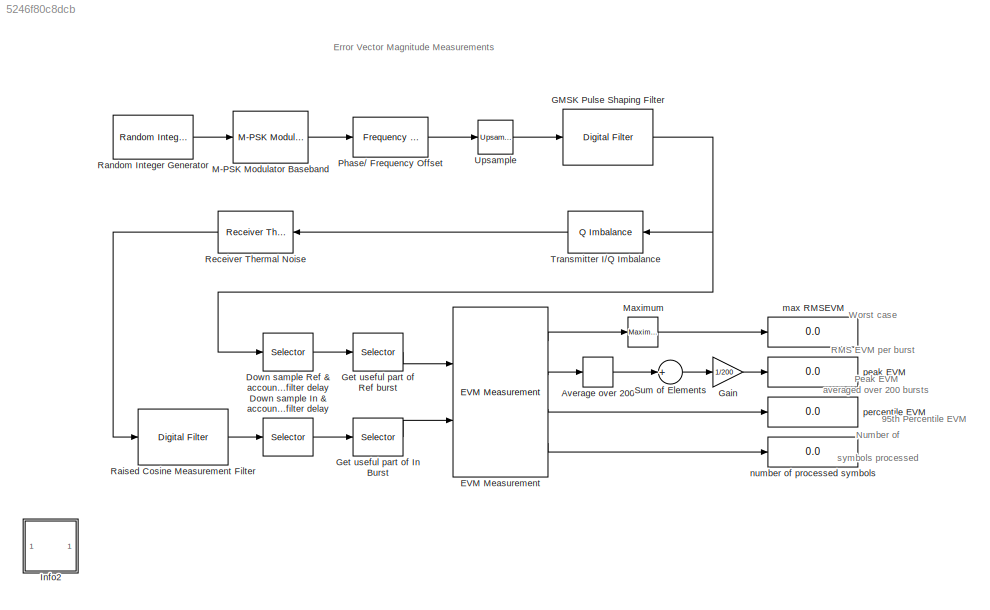
MODEL slx_5246f80c8dcb
KIND model
CONFIG PreLoadFcn =  paramEVM = doc_evm_init;
BLOCK [Buffer] Average over 200
  N = 200
  TreatMby1Signals = One channel
BLOCK [Selector] Down sample In & account for filter delay
  IndexOptions = Index vector (dialog),Select all
  Indices = [paramEVM.rcvSigDelay+1:paramEVM.Nsamp:paramEVM.burstLen2*paramEVM.Nsamp],1
  InputPortWidth = 3
  NumberOfDimensions = 2
  OutputSizes = 1,1
  Ports = [1, 1]
BLOCK [Selector] Down sample Ref & account for filter delay
  IndexOptions = Index vector (dialog),Select all
  Indices = [paramEVM.refSigDelay+1:paramEVM.Nsamp:paramEVM.burstLen2*paramEVM.Nsamp],1
  InputPortWidth = 3
  NumberOfDimensions = 2
  OutputSizes = 1,1
  Ports = [1, 1]
BLOCK [Reference] EVM Measurement  REF=commutil2/EVM Measurement
  Ports = [2, 4]
  SourceBlock = commutil2/EVM Measurement
  SourceType = EVM Measurement
  averagePower = 1
  maxOrMinOut = on
  nSym = on
  normMethod = Average reference signal power
  peakPower = 1
  percentileOut = on
  percentileVal = 95
BLOCK [Reference] GMSK Pulse Shaping Filter  REF=dsparch4/Digital Filter
  AllPoleFiltStruct = Direct form
  BiQuadCoeffs = [1 0.3 0.4 1 0.1 0.2]
  CoeffSource = Specify via dialog
  DenCoeffs = [1 0.1]
  FIRFiltStruct = Direct form
  FiltPerSampPopup = One filter per frame
  FilterSource = Specify via dialog
  IC = 0
  ICden = 0
  ICnum = 0
  IIRFiltStruct = Direct form II transposed
  InputProcessing = Columns as channels (frame based)
  LatticeCoeffs = [0.2 0.4]
  LockScale = off
  NumCoeffs = paramEVM.c0
  Ports = [1, 1]
  ScaleValues = 1
  SourceBlock = dsparch4/Digital Filter
  SourceType = Digital Filter
  TypePopup = FIR (all zeros)
  UserDataPersistent = on
  accumFracLength = 30
  accumMode = Same as product output
  accumWordLength = 32
  additionalParams = off
  allowOverrides = on
  denIgnore = on
  dfiltObjectName = dfilt.dffir([1 2 1])
  firstCoeffFracLength = 15
  firstCoeffMode = Same word length as input
  firstCoeffWordLength = 16
  memoryFracLength = 15
  memoryMode = Same as input
  memoryWordLength = 16
  multiplicandFracLength = 30
  multiplicandMode = Same as output
  multiplicandWordLength = 32
  outputFracLength = 15
  outputMode = Same as input
  outputWordLength = 16
  overflowMode = off
  prodOutputFracLength = 30
  prodOutputMode = Same as input
  prodOutputWordLength = 32
  roundingMode = Floor
  scaleValueFracLength = 14
  secondCoeffFracLength = 15
  secondCoeffMode = Same as numerator
  secondCoeffWordLength = 16
  showAcc = off
  showCoeff = off
  showMem = off
  showMpy = off
  showOut = off
  stageIOMode = Same as input
  stageIOWordLength = 16
  stageInFracLength = 15
  stageOutFracLength = 15
  tapSumFracLength = 30
  tapSumMode = Same as input
  tapSumWordLength = 32
  thirdCoeffFracLength = 15
  thirdCoeffMode = Same as input
  thirdCoeffWordLength = 16
BLOCK [Gain] Gain
  Gain = 1/200
  OutDataTypeStr = Inherit: Inherit via internal rule
  ParamDataTypeStr = Inherit: Inherit via internal rule
  SaturateOnIntegerOverflow = off
BLOCK [Selector] Get useful part of In Burst
  IndexOptions = Index vector (dialog),Select all
  Indices = [1:paramEVM.burstLen1],1
  InputPortWidth = 3
  NumberOfDimensions = 2
  OutputSizes = 1,1
  Ports = [1, 1]
BLOCK [Selector] Get useful part of Ref burst
  IndexOptions = Index vector (dialog),Select all
  Indices = [1:paramEVM.burstLen1],1
  InputPortWidth = 3
  NumberOfDimensions = 2
  OutputSizes = 1,1
  Ports = [1, 1]
BLOCK [SubSystem] Info2
  AncestorBlock = commblksprivate/Info
  OpenFcn = helpview([docroot '/toolbox/comm/comm.map'], 'doc_evm')
  Ports = []
  RequestExecContextInheritance = off
BLOCK [Reference] M-PSK Modulator Baseband  REF=commdigbbndpm3/M-PSK
Modulator
Baseband
  Enc = User-defined
  InType = Integer
  M = 8
  Mapping = [7 3 2 0 1 5 4 6]
  Ph = 0
  Ports = [1, 1]
  SourceBlock = commdigbbndpm3/M-PSK\nModulator\nBaseband
  SourceType = M-PSK Modulator Baseband
  outDtype = double
  outFracLen = 15
  outFracLenMode = Best precision
  outUDDataType = sfix(16)
  outWordLen = 16
BLOCK [Reference] Maximum  REF=dspstat3/Maximum
  Dimension = 1
  InputProcessing = Columns as channels (frame based)
  LockScale = off
  Ports = [1, 1]
  SourceBlock = dspstat3/Maximum
  SourceType = Maximum
  UserDataPersistent = on
  accumDataTypeStr = Inherit: Same as product output
  accumFracLength = 30
  accumLastDataTypeStr = Inherit: Same as product output
  accumMode = Same as product output
  accumWordLength = 32
  additionalParams = off
  allowOverrides = on
  colComp = on
  fcn = Running
  indexBase = One
  operateOver = Each column
  operation = maximum
  overflowMode = off
  prodOutputDataTypeStr = Inherit: Same as input
  prodOutputFracLength = 30
  prodOutputLastDataTypeStr = Inherit: Same as input
  prodOutputMode = Same as input
  prodOutputWordLength = 32
  reset = None
  roiEnable = off
  roiFlag = off
  roiOutput = Individual statistics for each ROI
  roiPortion = Entire ROI
  roiType = Rectangles
  roundingMode = Floor
BLOCK [Reference] Phase// Frequency Offset  REF=commrflib2/Phase//
Frequency
Offset
  Ports = [1, 1]
  SourceBlock = commrflib2/Phase//\nFrequency\nOffset
  SourceType = Phase/Frequency Offset
  freqOffset = 0
  freqPort = off
  phaseOffset = (0:paramEVM.burstLen2-1)'*paramEVM.phi
BLOCK [Reference] Raised Cosine Measurement Filter  REF=dsparch4/Digital Filter
  AllPoleFiltStruct = Direct form
  BiQuadCoeffs = [1 0.3 0.4 1 0.1 0.2]
  CoeffSource = Specify via dialog
  DenCoeffs = [1 0.1]
  FIRFiltStruct = Direct form
  FiltPerSampPopup = One filter per frame
  FilterSource = Specify via dialog
  IC = 0
  ICden = 0
  ICnum = 0
  IIRFiltStruct = Direct form II transposed
  InputProcessing = Columns as channels (frame based)
  LatticeCoeffs = [0.2 0.4]
  LockScale = off
  NumCoeffs = paramEVM.c1
  Ports = [1, 1]
  ScaleValues = 1
  SourceBlock = dsparch4/Digital Filter
  SourceType = Digital Filter
  TypePopup = FIR (all zeros)
  UserDataPersistent = on
  accumFracLength = 30
  accumMode = Same as product output
  accumWordLength = 32
  additionalParams = off
  allowOverrides = on
  denIgnore = on
  dfiltObjectName = dfilt.dffir([1 2 1])
  firstCoeffFracLength = 15
  firstCoeffMode = Same word length as input
  firstCoeffWordLength = 16
  memoryFracLength = 15
  memoryMode = Same as input
  memoryWordLength = 16
  multiplicandFracLength = 30
  multiplicandMode = Same as output
  multiplicandWordLength = 32
  outputFracLength = 15
  outputMode = Same as input
  outputWordLength = 16
  overflowMode = off
  prodOutputFracLength = 30
  prodOutputMode = Same as input
  prodOutputWordLength = 32
  roundingMode = Floor
  scaleValueFracLength = 14
  secondCoeffFracLength = 15
  secondCoeffMode = Same as numerator
  secondCoeffWordLength = 16
  showAcc = off
  showCoeff = off
  showMem = off
  showMpy = off
  showOut = off
  stageIOMode = Same as input
  stageIOWordLength = 16
  stageInFracLength = 15
  stageOutFracLength = 15
  tapSumFracLength = 30
  tapSumMode = Same as input
  tapSumWordLength = 32
  thirdCoeffFracLength = 15
  thirdCoeffMode = Same as input
  thirdCoeffWordLength = 16
BLOCK [Reference] Random Integer Generator  REF=commrandsrc2/Random Integer
Generator
  Ports = [0, 1]
  SourceBlock = commrandsrc2/Random Integer\nGenerator
  SourceType = Random Integer Generator
  Ts = paramEVM.Tnormal
  frameBased = on
  mul = 8
  orient = off
  outDataType = double
  sampPerFrame = paramEVM.burstLen2
  seed = 37
BLOCK [Reference] Receiver Thermal Noise  REF=commrflib2/Receiver
Thermal Noise
  Ports = [1, 1]
  SourceBlock = commrflib2/Receiver\nThermal Noise
  SourceType = Receiver Thermal Noise
  method = Noise temperature
  nfactor = 2
  nfigure = 3.01
  ntemp = 290
  seed = 67987
BLOCK [Sum] Sum of Elements
  CollapseMode = Specified dimension
  InputSameDT = off
  Inputs = +
  OutDataTypeStr = Inherit: Inherit via internal rule
  Ports = [1, 1]
  SaturateOnIntegerOverflow = off
BLOCK [Reference] Transmitter I//Q Imbalance  REF=commrflib2/I//Q
Imbalance
  Idc = 0
  Ports = [1, 1]
  Qdc = 0
  SourceBlock = commrflib2/I//Q\nImbalance
  SourceType = I/Q Imbalance
  ampImbal = 0.5
  phsImbal = 1
BLOCK [Reference] Upsample  REF=dspsigops/Upsample
  InputProcessing = Columns as channels (frame based)
  N = paramEVM.Nsamp
  Ports = [1, 1]
  RateOptions = Enforce single-rate processing
  SourceBlock = dspsigops/Upsample
  SourceType = Upsample
  UserDataPersistent = on
  ic = 0
  mode = Unused parameter value
  phase = 0
BLOCK [Display] max RMSEVM
  Decimation = 1
  Ports = [1]
BLOCK [Display] number of processed symbols
  Decimation = 1
  Format = long
  Ports = [1]
BLOCK [Display] peak EVM
  Decimation = 1
  Ports = [1]
BLOCK [Display] percentile EVM
  Decimation = 1
  Ports = [1]
ANNOTATION (root): 95th Percentile EVM
ANNOTATION (root): Error Vector Magnitude Measurements
ANNOTATION (root): Number of symbols processed
ANNOTATION (root): Peak EVM averaged over 200 bursts
ANNOTATION (root): Worst case RMS EVM per burst
LINE Average over 200:1 -> Sum of Elements:1
LINE Down sample In & account for filter delay:1 -> Get useful part of In Burst:1
LINE Down sample Ref & account for filter delay:1 -> Get useful part of Ref burst:1
LINE EVM Measurement:1 -> Maximum:1
LINE EVM Measurement:2 -> Average over 200:1
LINE EVM Measurement:3 -> percentile EVM:1
LINE EVM Measurement:4 -> number of processed symbols:1
NET GMSK Pulse Shaping Filter:1 -> Down sample Ref & account for filter delay:1, Transmitter I//Q Imbalance:1
LINE Gain:1 -> peak EVM:1
LINE Get useful part of In Burst:1 -> EVM Measurement:2
LINE Get useful part of Ref burst:1 -> EVM Measurement:1
LINE M-PSK Modulator Baseband:1 -> Phase// Frequency Offset:1
LINE Maximum:1 -> max RMSEVM:1
LINE Phase// Frequency Offset:1 -> Upsample:1
LINE Raised Cosine Measurement Filter:1 -> Down sample In & account for filter delay:1
LINE Random Integer Generator:1 -> M-PSK Modulator Baseband:1
LINE Receiver Thermal Noise:1 -> Raised Cosine Measurement Filter:1
LINE Sum of Elements:1 -> Gain:1
LINE Transmitter I//Q Imbalance:1 -> Receiver Thermal Noise:1
LINE Upsample:1 -> GMSK Pulse Shaping Filter:1
note: NET lines group one-source signal fan-out (src -> all destinations, sorted); 1:1 wires keep LINE
